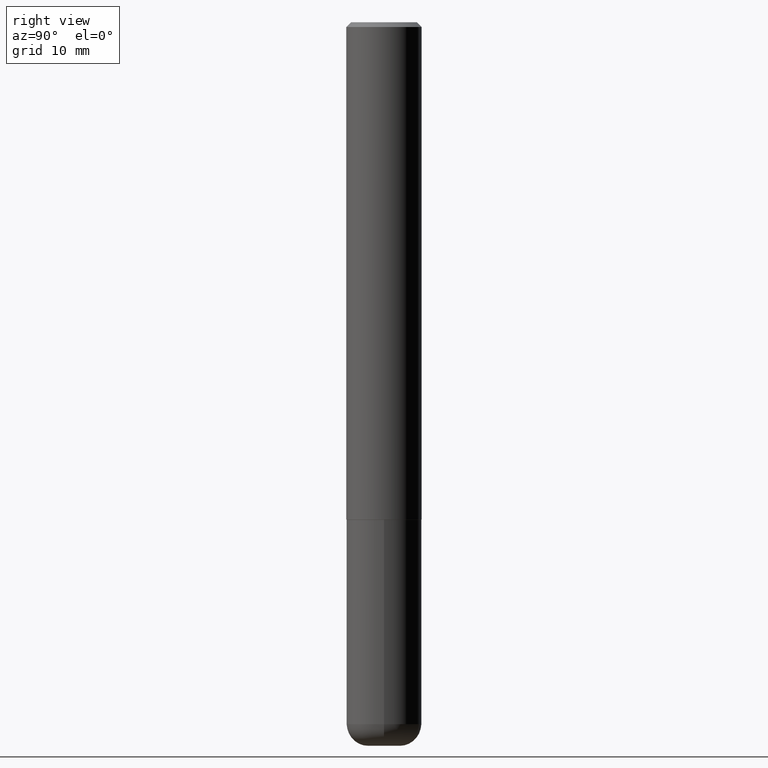
[diagram: clean part render]
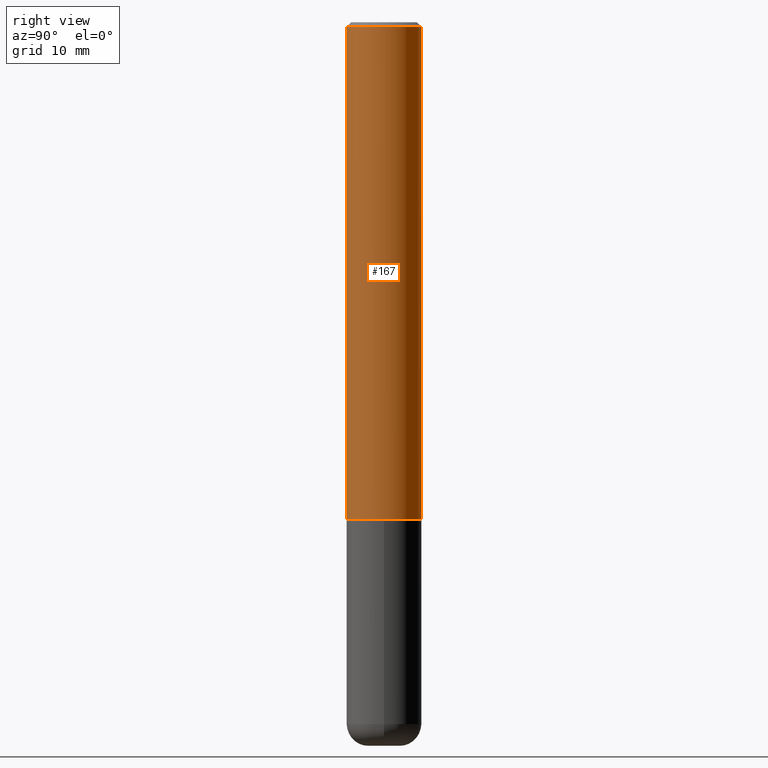
[diagram: same view with one face highlighted and labeled with its STEP entity id]
A machine part, right view. The second image highlights one B-rep face of the part: STEP entity #167.
In plain terms, the highlighted cylindrical surface (partial cylindrical patch) has radius 3.9688 mm, axis along (-0, 0, 1).
Its self-contained STEP definition (entity closure, byte-faithful):
#8 = DIRECTION ( 'NONE',  ( -2.445176063107630933E-29, 3.491900563592034843E-15, 1.000000000000000000 ) ) ;
#27 = DIRECTION ( 'NONE',  ( -2.445176063107631214E-29, 3.491900563592034843E-15, 1.000000000000000000 ) ) ;
#43 = CIRCLE ( 'NONE', #73, 0.1562500000000002776 ) ;
#46 = CARTESIAN_POINT ( 'NONE',  ( 1.091087918388479568E-15, 0.1562499999999999445, -0.02000000000000057981 ) ) ;
#49 = ORIENTED_EDGE ( 'NONE', *, *, #297, .T. ) ;
#52 = VECTOR ( 'NONE', #27, 39.37007874015748143 ) ;
#67 = AXIS2_PLACEMENT_3D ( 'NONE', #80, #200, #393 ) ;
#72 = CARTESIAN_POINT ( 'NONE',  ( 1.110223024625157329E-15, 0.1562500000000001388, -5.456094630612559989E-16 ) ) ;
#73 = AXIS2_PLACEMENT_3D ( 'NONE', #192, #8, #234 ) ;
#77 = CIRCLE ( 'NONE', #67, 0.1562500000000000000 ) ;
#79 = EDGE_CURVE ( 'NONE', #274, #246, #77, .T. ) ;
#80 = CARTESIAN_POINT ( 'NONE',  ( 4.890352126215269679E-31, -6.983801127184080238E-17, -0.02000000000000003511 ) ) ;
#92 = VERTEX_POINT ( 'NONE', #403 ) ;
#126 = FACE_OUTER_BOUND ( 'NONE', #386, .T. ) ;
#166 = DIRECTION ( 'NONE',  ( -6.982962677686265922E-15, -1.000000000000000000, 3.491900563592035238E-15 ) ) ;
#167 = ADVANCED_FACE ( 'NONE', ( #126 ), #290, .T. ) ;
#168 = EDGE_CURVE ( 'NONE', #92, #182, #43, .T. ) ;
#182 = VERTEX_POINT ( 'NONE', #328 ) ;
#186 = ORIENTED_EDGE ( 'NONE', *, *, #324, .F. ) ;
#192 = CARTESIAN_POINT ( 'NONE',  ( 5.040730454096381281E-29, -7.198553011844980434E-15, -2.061500000000000110 ) ) ;
#200 = DIRECTION ( 'NONE',  ( -2.445176063107630933E-29, 3.491900563592034843E-15, 1.000000000000000000 ) ) ;
#234 = DIRECTION ( 'NONE',  ( -6.982962677686265922E-15, -1.000000000000000000, 3.496765431890250609E-15 ) ) ;
#246 = VERTEX_POINT ( 'NONE', #46 ) ;
#263 = CARTESIAN_POINT ( 'NONE',  ( 0.000000000000000000, 0.000000000000000000, 0.000000000000000000 ) ) ;
#270 = AXIS2_PLACEMENT_3D ( 'NONE', #263, #325, #166 ) ;
#274 = VERTEX_POINT ( 'NONE', #285 ) ;
#276 = LINE ( 'NONE', #406, #309 ) ;
#285 = CARTESIAN_POINT ( 'NONE',  ( -1.071952812151801215E-15, -0.1562500000000000833, -0.01999999999999948694 ) ) ;
#290 = CYLINDRICAL_SURFACE ( 'NONE', #270, 0.1562500000000001388 ) ;
#297 = EDGE_CURVE ( 'NONE', #182, #246, #345, .T. ) ;
#303 = ORIENTED_EDGE ( 'NONE', *, *, #168, .T. ) ;
#307 = ORIENTED_EDGE ( 'NONE', *, *, #79, .F. ) ;
#309 = VECTOR ( 'NONE', #397, 39.37007874015748143 ) ;
#324 = EDGE_CURVE ( 'NONE', #92, #274, #276, .T. ) ;
#325 = DIRECTION ( 'NONE',  ( -2.445176063107630933E-29, 3.491900563592034843E-15, 1.000000000000000000 ) ) ;
#328 = CARTESIAN_POINT ( 'NONE',  ( 1.110223024625183362E-15, 0.1562499999999930611, -2.061500000000000554 ) ) ;
#345 = LINE ( 'NONE', #72, #52 ) ;
#386 = EDGE_LOOP ( 'NONE', ( #303, #49, #307, #186 ) ) ;
#393 = DIRECTION ( 'NONE',  ( -6.982962677686265133E-15, -1.000000000000000000, 3.496765431890256920E-15 ) ) ;
#397 = DIRECTION ( 'NONE',  ( -2.445176063107631214E-29, 3.491900563592034843E-15, 1.000000000000000000 ) ) ;
#403 = CARTESIAN_POINT ( 'NONE',  ( -1.091087918388430659E-15, -0.1562500000000074940, -2.061499999999999666 ) ) ;
#406 = CARTESIAN_POINT ( 'NONE',  ( -1.091087918388479962E-15, -0.1562500000000001388, 5.456094630612559989E-16 ) ) ;